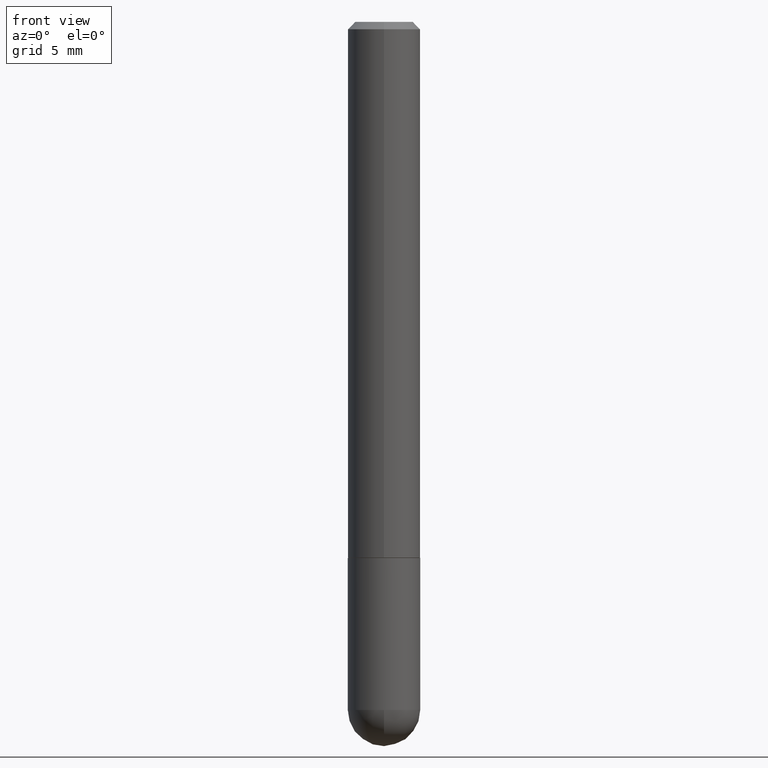
[diagram: clean part render]
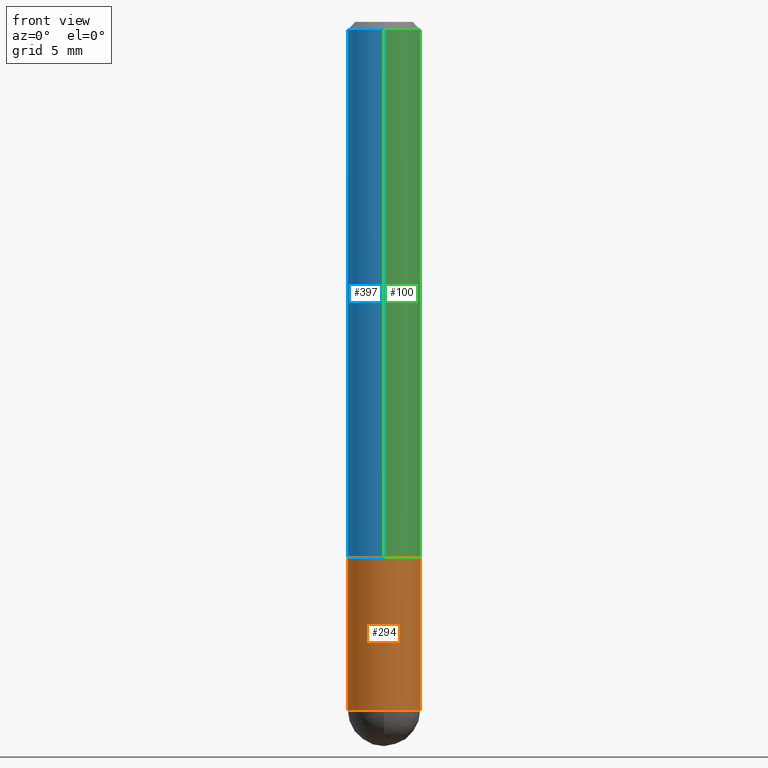
[diagram: same view with three faces highlighted in distinct colors, each labeled with its STEP entity id]
A machine part, front view with three faces highlighted in distinct colors.
Their STEP definitions:

[orange] entity #294 — the highlighted cylindrical surface (edge-blend (fillet) strip) has radius 2.5006 mm, axis along (-0, 0, 1).
#2 = VERTEX_POINT ( 'NONE', #285 ) ;
#16 = DIRECTION ( 'NONE',  ( -2.445468806185136597E-29, 3.491481338843145583E-15, 1.000000000000000000 ) ) ;
#18 = DIRECTION ( 'NONE',  ( 1.000000000000000000, -6.982962677686265133E-15, 0.000000000000000000 ) ) ;
#23 = DIRECTION ( 'NONE',  ( -2.445468806185136877E-29, 3.491481338843145188E-15, 1.000000000000000000 ) ) ;
#25 = AXIS2_PLACEMENT_3D ( 'NONE', #318, #70, #293 ) ;
#27 = CARTESIAN_POINT ( 'NONE',  ( 4.573148941006514739E-29, -6.529244677703625427E-15, -1.870050000000000212 ) ) ;
#28 = CARTESIAN_POINT ( 'NONE',  ( 0.09844999999999999585, -5.773513541911023795E-15, -1.456700000000000106 ) ) ;
#39 = CARTESIAN_POINT ( 'NONE',  ( 3.562314409969888915E-29, -5.086040866292811234E-15, -1.456700000000000106 ) ) ;
#40 = EDGE_CURVE ( 'NONE', #237, #2, #163, .T. ) ;
#54 = ORIENTED_EDGE ( 'NONE', *, *, #40, .T. ) ;
#55 = DIRECTION ( 'NONE',  ( 1.000000000000000000, -6.982962677686266711E-15, 4.876176775795935793E-29 ) ) ;
#59 = VERTEX_POINT ( 'NONE', #28 ) ;
#62 = VECTOR ( 'NONE', #379, 39.37007874015748143 ) ;
#70 = DIRECTION ( 'NONE',  ( -2.445468806185136597E-29, 3.491481338843145583E-15, 1.000000000000000000 ) ) ;
#76 = EDGE_LOOP ( 'NONE', ( #177, #54, #389, #363, #159 ) ) ;
#80 = VERTEX_POINT ( 'NONE', #118 ) ;
#94 = EDGE_CURVE ( 'NONE', #237, #292, #342, .T. ) ;
#98 = CARTESIAN_POINT ( 'NONE',  ( -0.09845000000000000973, 6.995293233558187021E-16, -4.842691596355954742E-30 ) ) ;
#105 = EDGE_CURVE ( 'NONE', #292, #59, #412, .T. ) ;
#112 = LINE ( 'NONE', #307, #225 ) ;
#118 = CARTESIAN_POINT ( 'NONE',  ( 0.09845000000000000973, -6.495115447616432074E-15, -1.870050000000000212 ) ) ;
#120 = CARTESIAN_POINT ( 'NONE',  ( -0.09845000000000000973, -5.108113448642400615E-15, -1.870050000000000212 ) ) ;
#159 = ORIENTED_EDGE ( 'NONE', *, *, #105, .F. ) ;
#163 = CIRCLE ( 'NONE', #190, 0.09845000000000000973 ) ;
#177 = ORIENTED_EDGE ( 'NONE', *, *, #94, .F. ) ;
#180 = DIRECTION ( 'NONE',  ( -2.445468806185136597E-29, 3.491481338843145583E-15, 1.000000000000000000 ) ) ;
#190 = AXIS2_PLACEMENT_3D ( 'NONE', #27, #180, #18 ) ;
#201 = DIRECTION ( 'NONE',  ( -2.445468806185136597E-29, 3.491481338843145583E-15, 1.000000000000000000 ) ) ;
#212 = CYLINDRICAL_SURFACE ( 'NONE', #304, 0.09845000000000000973 ) ;
#217 = CIRCLE ( 'NONE', #25, 0.09845000000000000973 ) ;
#225 = VECTOR ( 'NONE', #23, 39.37007874015748143 ) ;
#230 = DIRECTION ( 'NONE',  ( 1.000000000000000000, -6.982962677686265922E-15, 0.000000000000000000 ) ) ;
#237 = VERTEX_POINT ( 'NONE', #120 ) ;
#255 = EDGE_CURVE ( 'NONE', #80, #59, #112, .T. ) ;
#278 = FACE_OUTER_BOUND ( 'NONE', #76, .T. ) ;
#285 = CARTESIAN_POINT ( 'NONE',  ( -6.995293233557750189E-16, -0.09845000000000685147, -1.870049999999999990 ) ) ;
#292 = VERTEX_POINT ( 'NONE', #368 ) ;
#293 = DIRECTION ( 'NONE',  ( 1.000000000000000000, -6.982962677686265133E-15, 0.000000000000000000 ) ) ;
#294 = ADVANCED_FACE ( 'NONE', ( #278 ), #212, .T. ) ;
#304 = AXIS2_PLACEMENT_3D ( 'NONE', #333, #16, #55 ) ;
#307 = CARTESIAN_POINT ( 'NONE',  ( 0.09845000000000000973, -6.874726756182130531E-16, 4.800596035771099214E-30 ) ) ;
#318 = CARTESIAN_POINT ( 'NONE',  ( 4.573148941006514739E-29, -6.529244677703625427E-15, -1.870050000000000212 ) ) ;
#333 = CARTESIAN_POINT ( 'NONE',  ( 0.000000000000000000, 0.000000000000000000, 0.000000000000000000 ) ) ;
#342 = LINE ( 'NONE', #98, #62 ) ;
#363 = ORIENTED_EDGE ( 'NONE', *, *, #255, .T. ) ;
#368 = CARTESIAN_POINT ( 'NONE',  ( -0.09844999999999999585, -5.108113448642399037E-15, -1.456700000000000106 ) ) ;
#376 = EDGE_CURVE ( 'NONE', #2, #80, #217, .T. ) ;
#379 = DIRECTION ( 'NONE',  ( -2.445468806185136877E-29, 3.491481338843145188E-15, 1.000000000000000000 ) ) ;
#389 = ORIENTED_EDGE ( 'NONE', *, *, #376, .T. ) ;
#407 = AXIS2_PLACEMENT_3D ( 'NONE', #39, #201, #230 ) ;
#412 = CIRCLE ( 'NONE', #407, 0.09844999999999999585 ) ;

[blue] entity #397 — the highlighted cylindrical surface (edge-blend (fillet) strip) has radius 2.5006 mm, axis along (-0, 0, 1).
#15 = ORIENTED_EDGE ( 'NONE', *, *, #157, .T. ) ;
#21 = DIRECTION ( 'NONE',  ( -2.445558673506405004E-29, 3.491352643724158830E-15, 1.000000000000000000 ) ) ;
#38 = CYLINDRICAL_SURFACE ( 'NONE', #45, 0.09845000000000007911 ) ;
#45 = AXIS2_PLACEMENT_3D ( 'NONE', #264, #134, #142 ) ;
#51 = VERTEX_POINT ( 'NONE', #152 ) ;
#58 = VERTEX_POINT ( 'NONE', #399 ) ;
#66 = FACE_OUTER_BOUND ( 'NONE', #267, .T. ) ;
#71 = CARTESIAN_POINT ( 'NONE',  ( -6.874726756182134475E-16, -0.09845000000000007911, 3.437236677746436719E-16 ) ) ;
#99 = CARTESIAN_POINT ( 'NONE',  ( 6.995293233558375361E-16, 0.09844999999999508311, -1.455700000000000216 ) ) ;
#104 = DIRECTION ( 'NONE',  ( -2.445558673506405004E-29, 3.491352643724158830E-15, 1.000000000000000000 ) ) ;
#109 = CARTESIAN_POINT ( 'NONE',  ( -6.874726756181783432E-16, -0.09845000000000524165, -1.455699999999999772 ) ) ;
#113 = ORIENTED_EDGE ( 'NONE', *, *, #320, .F. ) ;
#123 = DIRECTION ( 'NONE',  ( -2.445558673506405004E-29, 3.491352643724158830E-15, 1.000000000000000000 ) ) ;
#132 = VECTOR ( 'NONE', #21, 39.37007874015748143 ) ;
#134 = DIRECTION ( 'NONE',  ( -2.445558673506405004E-29, 3.491352643724158830E-15, 1.000000000000000000 ) ) ;
#142 = DIRECTION ( 'NONE',  ( -6.982962677686265922E-15, -1.000000000000000000, 3.491352643724158436E-15 ) ) ;
#152 = CARTESIAN_POINT ( 'NONE',  ( -6.754160278806068125E-16, -0.09845000000000007911, -0.01999999999999967429 ) ) ;
#154 = VERTEX_POINT ( 'NONE', #109 ) ;
#157 = EDGE_CURVE ( 'NONE', #356, #154, #332, .T. ) ;
#167 = EDGE_CURVE ( 'NONE', #154, #51, #205, .T. ) ;
#187 = EDGE_CURVE ( 'NONE', #58, #51, #231, .T. ) ;
#205 = LINE ( 'NONE', #71, #295 ) ;
#231 = CIRCLE ( 'NONE', #289, 0.09845000000000000973 ) ;
#245 = AXIS2_PLACEMENT_3D ( 'NONE', #357, #104, #355 ) ;
#246 = LINE ( 'NONE', #309, #132 ) ;
#264 = CARTESIAN_POINT ( 'NONE',  ( 0.000000000000000000, 0.000000000000000000, 0.000000000000000000 ) ) ;
#267 = EDGE_LOOP ( 'NONE', ( #113, #15, #404, #393 ) ) ;
#289 = AXIS2_PLACEMENT_3D ( 'NONE', #398, #123, #335 ) ;
#295 = VECTOR ( 'NONE', #298, 39.37007874015748143 ) ;
#298 = DIRECTION ( 'NONE',  ( -2.445558673506405004E-29, 3.491352643724158830E-15, 1.000000000000000000 ) ) ;
#309 = CARTESIAN_POINT ( 'NONE',  ( 6.995293233558190965E-16, 0.09845000000000007911, -3.437236677746436719E-16 ) ) ;
#320 = EDGE_CURVE ( 'NONE', #356, #58, #246, .T. ) ;
#332 = CIRCLE ( 'NONE', #245, 0.09845000000000014850 ) ;
#335 = DIRECTION ( 'NONE',  ( -6.982962677686265922E-15, -1.000000000000000000, 3.511930032484848199E-15 ) ) ;
#355 = DIRECTION ( 'NONE',  ( -6.982962677686265922E-15, -1.000000000000000000, 2.774858297271974826E-15 ) ) ;
#356 = VERTEX_POINT ( 'NONE', #99 ) ;
#357 = CARTESIAN_POINT ( 'NONE',  ( 3.559999761023273732E-29, -5.082362043469258448E-15, -1.455699999999999994 ) ) ;
#393 = ORIENTED_EDGE ( 'NONE', *, *, #187, .F. ) ;
#397 = ADVANCED_FACE ( 'NONE', ( #66 ), #38, .T. ) ;
#398 = CARTESIAN_POINT ( 'NONE',  ( 4.891117347012815229E-31, -6.982705287448324760E-17, -0.02000000000000002123 ) ) ;
#399 = CARTESIAN_POINT ( 'NONE',  ( 6.874726756182134475E-16, 0.09844999999999994034, -0.02000000000000036818 ) ) ;
#404 = ORIENTED_EDGE ( 'NONE', *, *, #167, .T. ) ;

[green] entity #100 — the highlighted cylindrical surface (edge-blend (fillet) strip) has radius 2.5006 mm, axis along (-0, 0, 1).
#21 = DIRECTION ( 'NONE',  ( -2.445558673506405004E-29, 3.491352643724158830E-15, 1.000000000000000000 ) ) ;
#29 = FACE_OUTER_BOUND ( 'NONE', #250, .T. ) ;
#37 = DIRECTION ( 'NONE',  ( -2.445558673506405004E-29, 3.491352643724158830E-15, 1.000000000000000000 ) ) ;
#42 = ORIENTED_EDGE ( 'NONE', *, *, #320, .T. ) ;
#44 = CARTESIAN_POINT ( 'NONE',  ( 0.000000000000000000, 0.000000000000000000, 0.000000000000000000 ) ) ;
#51 = VERTEX_POINT ( 'NONE', #152 ) ;
#58 = VERTEX_POINT ( 'NONE', #399 ) ;
#64 = CYLINDRICAL_SURFACE ( 'NONE', #149, 0.09845000000000007911 ) ;
#71 = CARTESIAN_POINT ( 'NONE',  ( -6.874726756182134475E-16, -0.09845000000000007911, 3.437236677746436719E-16 ) ) ;
#85 = DIRECTION ( 'NONE',  ( -2.445558673506405004E-29, 3.491352643724158830E-15, 1.000000000000000000 ) ) ;
#99 = CARTESIAN_POINT ( 'NONE',  ( 6.995293233558375361E-16, 0.09844999999999508311, -1.455700000000000216 ) ) ;
#100 = ADVANCED_FACE ( 'NONE', ( #29 ), #64, .T. ) ;
#109 = CARTESIAN_POINT ( 'NONE',  ( -6.874726756181783432E-16, -0.09845000000000524165, -1.455699999999999772 ) ) ;
#132 = VECTOR ( 'NONE', #21, 39.37007874015748143 ) ;
#140 = CARTESIAN_POINT ( 'NONE',  ( 3.559999761023273732E-29, -5.082362043469258448E-15, -1.455699999999999994 ) ) ;
#141 = AXIS2_PLACEMENT_3D ( 'NONE', #140, #321, #227 ) ;
#149 = AXIS2_PLACEMENT_3D ( 'NONE', #44, #37, #383 ) ;
#152 = CARTESIAN_POINT ( 'NONE',  ( -6.754160278806068125E-16, -0.09845000000000007911, -0.01999999999999967429 ) ) ;
#154 = VERTEX_POINT ( 'NONE', #109 ) ;
#167 = EDGE_CURVE ( 'NONE', #154, #51, #205, .T. ) ;
#171 = ORIENTED_EDGE ( 'NONE', *, *, #271, .F. ) ;
#205 = LINE ( 'NONE', #71, #295 ) ;
#227 = DIRECTION ( 'NONE',  ( -6.982962677686265922E-15, -1.000000000000000000, 2.774858297271974826E-15 ) ) ;
#246 = LINE ( 'NONE', #309, #132 ) ;
#250 = EDGE_LOOP ( 'NONE', ( #336, #42, #171, #302 ) ) ;
#258 = CIRCLE ( 'NONE', #361, 0.09845000000000000973 ) ;
#271 = EDGE_CURVE ( 'NONE', #51, #58, #258, .T. ) ;
#295 = VECTOR ( 'NONE', #298, 39.37007874015748143 ) ;
#298 = DIRECTION ( 'NONE',  ( -2.445558673506405004E-29, 3.491352643724158830E-15, 1.000000000000000000 ) ) ;
#302 = ORIENTED_EDGE ( 'NONE', *, *, #167, .F. ) ;
#309 = CARTESIAN_POINT ( 'NONE',  ( 6.995293233558190965E-16, 0.09845000000000007911, -3.437236677746436719E-16 ) ) ;
#315 = CIRCLE ( 'NONE', #141, 0.09845000000000014850 ) ;
#320 = EDGE_CURVE ( 'NONE', #356, #58, #246, .T. ) ;
#321 = DIRECTION ( 'NONE',  ( -2.445558673506405004E-29, 3.491352643724158830E-15, 1.000000000000000000 ) ) ;
#328 = DIRECTION ( 'NONE',  ( -6.982962677686265922E-15, -1.000000000000000000, 3.511930032484848199E-15 ) ) ;
#336 = ORIENTED_EDGE ( 'NONE', *, *, #373, .T. ) ;
#356 = VERTEX_POINT ( 'NONE', #99 ) ;
#361 = AXIS2_PLACEMENT_3D ( 'NONE', #367, #85, #328 ) ;
#367 = CARTESIAN_POINT ( 'NONE',  ( 4.891117347012815229E-31, -6.982705287448324760E-17, -0.02000000000000002123 ) ) ;
#373 = EDGE_CURVE ( 'NONE', #154, #356, #315, .T. ) ;
#383 = DIRECTION ( 'NONE',  ( -6.982962677686265922E-15, -1.000000000000000000, 3.491352643724158436E-15 ) ) ;
#399 = CARTESIAN_POINT ( 'NONE',  ( 6.874726756182134475E-16, 0.09844999999999994034, -0.02000000000000036818 ) ) ;